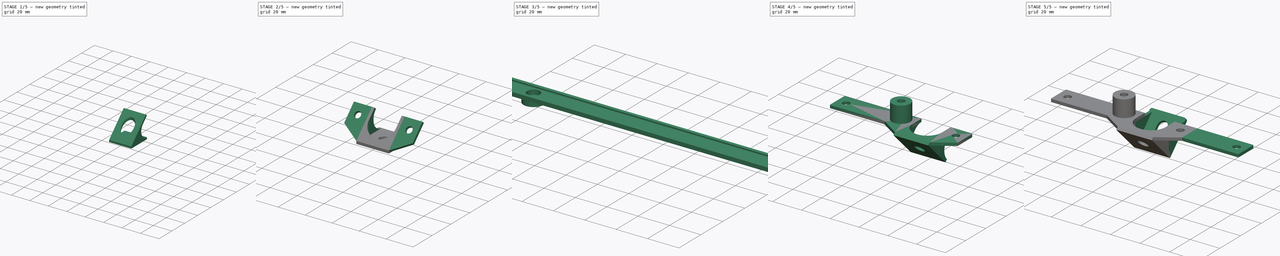
[diagram: build sequence overview — one tinted view per stage of 5, left to right]
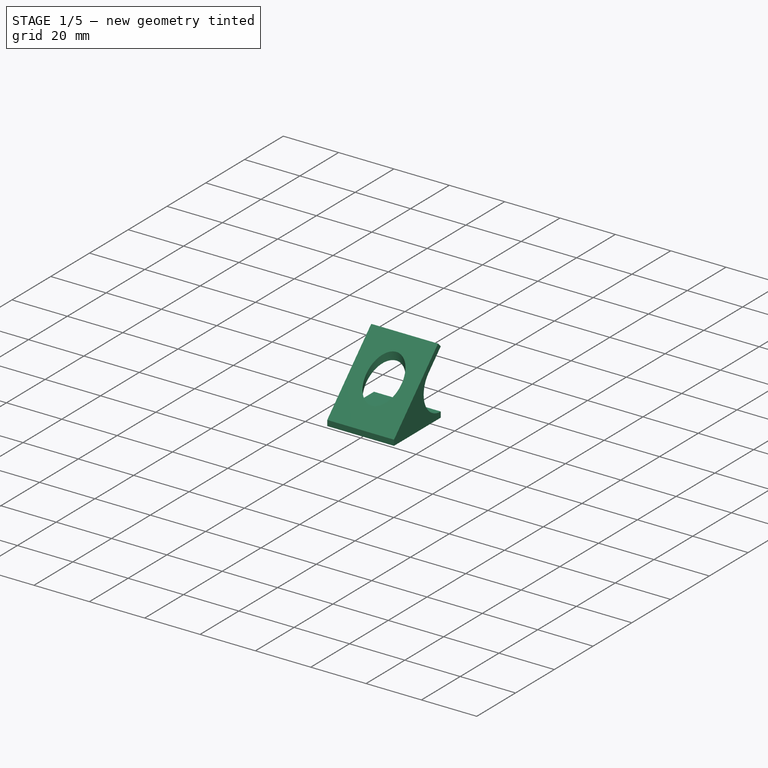
[diagram: stage 1 of 5 — iso view after this stage's code; geometry added in this stage tinted green]
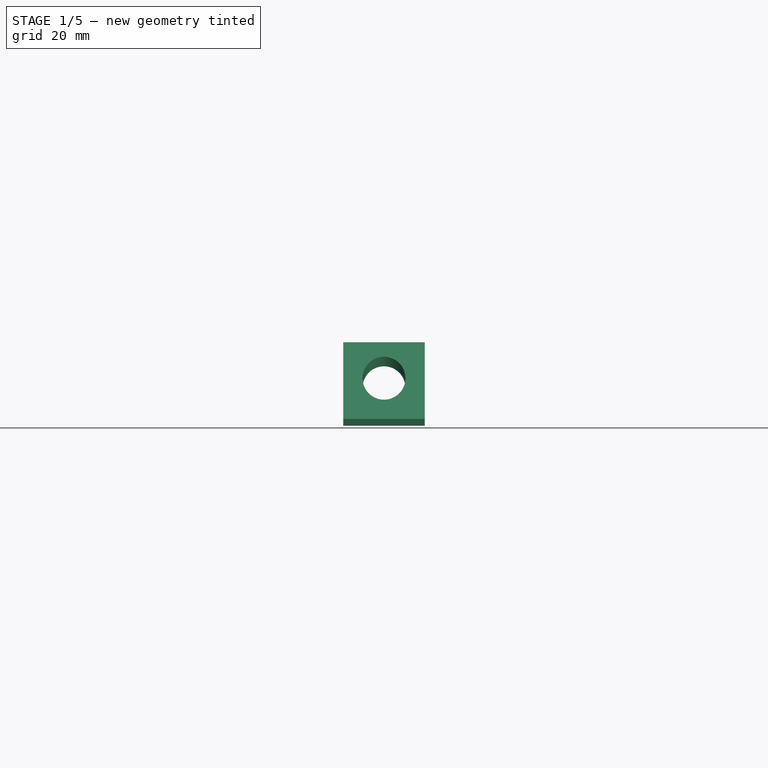
[diagram: stage 1 of 5 — front view after this stage's code; geometry added in this stage tinted green]
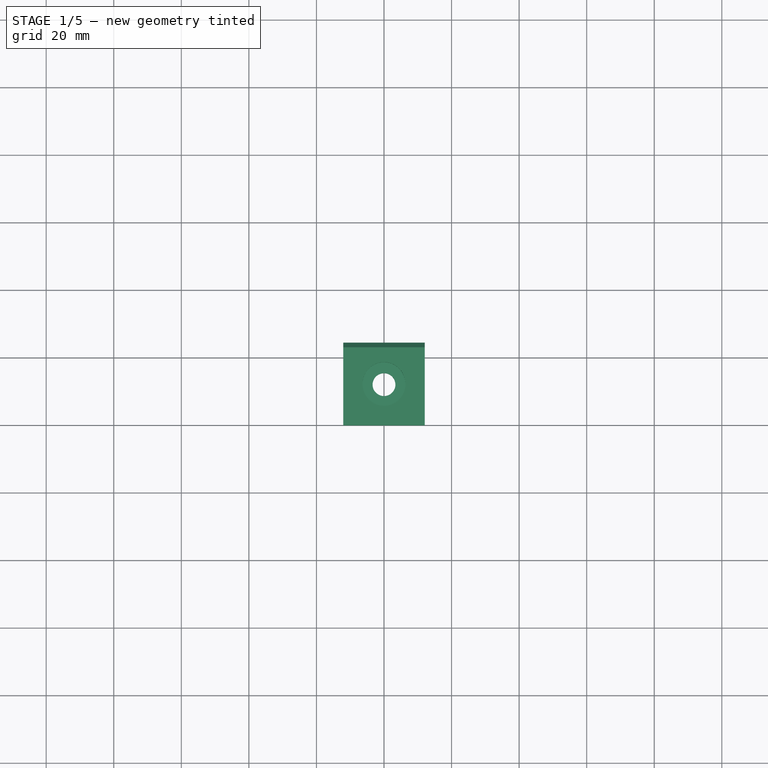
[diagram: stage 1 of 5 — top view after this stage's code; geometry added in this stage tinted green]
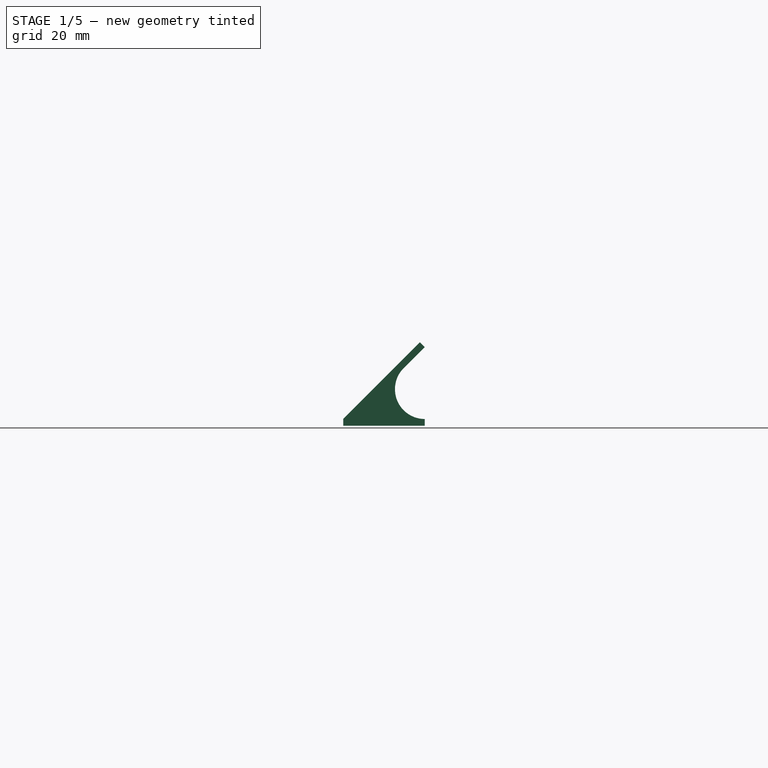
[diagram: stage 1 of 5 — right view after this stage's code; geometry added in this stage tinted green]
FCSTD DOCUMENT  (FreeCAD 0.22R38553 (Git))
Label: led_brackets
License: All rights reserved
LicenseURL: http://en.wikipedia.org/wiki/All_rights_reserved
objects: Sketcher::SketchObject×15, PartDesign::Pad×11, PartDesign::Mirrored×5, PartDesign::Body×4, PartDesign::Pocket×2, PartDesign::SubShapeBinder×2, PartDesign::Fillet×1, PartDesign::Hole×1, PartDesign::Plane×1, PartDesign::FeatureBase×1
note: 94 computed .brp shape members not serialized (recipe doc carries the construction recipe); baked Part::Feature solids carry a one-line shape summary decoded from their .brp

FEATURE [Sketcher::SketchObject] Sketch
  ArcFitTolerance = 1e-06
  AttachmentSupport = -> [XY_Plane]
  FullyConstrained = true
  MakeInternals = false
  MapMode = 5
  sketch-geometry (5):
    g0: LineSegment StartX=-12.065 StartY=0 StartZ=0 EndX=12.065 EndY=0 EndZ=0
    g1: LineSegment StartX=12.065 StartY=0 StartZ=0 EndX=12.065 EndY=24.13 EndZ=0
    g2: LineSegment StartX=12.065 StartY=24.13 StartZ=0 EndX=-12.065 EndY=24.13 EndZ=0
    g3: LineSegment StartX=-12.065 StartY=24.13 StartZ=0 EndX=-12.065 EndY=0 EndZ=0
    g4: Circle CenterX=0 CenterY=12.065 CenterZ=0 NormalX=0 NormalY=0 NormalZ=1 AngleXU=0 Radius=3.3782
  constraints (14):
    c: Coincident(g0,g1)
    c: Coincident(g1,g2)
    c: Coincident(g2,g3)
    c: Coincident(g3,g0)
    c: Horizontal(g0)
    c: Horizontal(g2)
    c: Vertical(g1)
    c: Vertical(g3)
    c: PointOnObject(g0,g-1)
    c: PointOnObject(g4,g-2)
    c: DistanceX(g2,g2) = 24.13
    c: Equal(g2,g3)
    c: Symmetric(g2,g0,g4)
    c: Diameter(g4) = 6.7564
FEATURE [PartDesign::Pad] Pad
  Direction = (0,0,1)
  Length = 2
  Length2 = 10
  Profile = -> Sketch
  ReferenceAxis = -> Sketch [N_Axis]
  Suppressed = false
  Type = 0
FEATURE [Sketcher::SketchObject] Sketch001
  ArcFitTolerance = 1e-06
  AttachmentSupport = -> [YZ_Plane]
  ExternalGeometry = -> [Pad]
  FullyConstrained = true
  MakeInternals = false
  MapMode = 5
  Placement = pos=(0,0,0) rot=(0.57735,0.57735,0.57735;2.0944rad)
  sketch-geometry (5):
    g0: LineSegment StartX=0 StartY=2 StartZ=0 EndX=22.7158 EndY=24.7158 EndZ=0
    g1: LineSegment StartX=22.7158 StartY=24.7158 StartZ=0 EndX=24.13 EndY=23.3016 EndZ=0
    g2: LineSegment StartX=24.13 StartY=23.3016 StartZ=0 EndX=4.53553 EndY=3.70711 EndZ=0
    g3: ArcOfCircle CenterX=5.24264 CenterY=3 CenterZ=0 NormalX=0 NormalY=0 NormalZ=1 AngleXU=0 Radius=1 StartAngle=2.35619 EndAngle=4.71239
    g4: LineSegment StartX=5.24264 StartY=2 StartZ=0 EndX=0 EndY=2 EndZ=0
  constraints (13):
    c: Coincident(g0,g1)
    c: Coincident(g1,g2)
    c: Distance(g1,g1) = 2
    c: Angle(g0,g1) = 1.5708
    c: Parallel(g0,g2)
    c: Angle(g-1,g2) = 0.785398
    c: Vertical(g-3,g1)
    c: Coincident(g0,g-4)
    c: Tangent(g3,g2) = -1.5708
    c: Coincident(g4,g3)
    c: Coincident(g4,g0)
    c: Tangent(g3,g-4) = 1.5708
    c: Radius(g3) = 1
FEATURE [PartDesign::Pad] Pad001
  BaseFeature = -> Pad
  Direction = (1,0,0)
  Length = 24.13
  Length2 = 10
  Midplane = true
  Profile = -> Sketch001
  ReferenceAxis = -> Sketch001 [N_Axis]
  Suppressed = false
  Type = 0
FEATURE [Sketcher::SketchObject] Sketch002
  ArcFitTolerance = 1e-06
  AttachmentSupport = -> [Pad001]
  ExternalGeometry = -> [Pad001]
  FullyConstrained = true
  MakeInternals = false
  MapMode = 5
  Placement = pos=(0,0,2) rot=(0,0,1;0rad)
  sketch-geometry (1):
    g0: Circle CenterX=0 CenterY=12.065 CenterZ=0 NormalX=0 NormalY=0 NormalZ=1 AngleXU=0 Radius=6.35
  constraints (2):
    c: Coincident(g0,g-3)
    c: Diameter(g0) = 12.7
FEATURE [PartDesign::Pocket] Pocket
  BaseFeature = -> Pad001
  Direction = (0,0,-1)
  Length = 17
  Length2 = 5
  Profile = -> Sketch002
  ReferenceAxis = -> Sketch002 [N_Axis]
  Reversed = true
  Suppressed = false
  Type = 1
FEATURE [Sketcher::SketchObject] Sketch003
  ArcFitTolerance = 1e-06
  AttachmentSupport = -> [Pocket]
  ExternalGeometry = -> [Pocket]
  FullyConstrained = true
  MakeInternals = false
  MapMode = 5
  Placement = pos=(12.065,0,0) rot=(0.57735,0.57735,0.57735;2.0944rad)
  sketch-geometry (3):
    g0: ArcOfCircle CenterX=24.13 CenterY=10.8234 CenterZ=0 NormalX=0 NormalY=0 NormalZ=1 AngleXU=0 Radius=8.8234 StartAngle=2.35619 EndAngle=4.71239
    g1: LineSegment StartX=17.8909 StartY=17.0625 StartZ=0 EndX=2.82843 EndY=2 EndZ=0
    g2: LineSegment StartX=2.82843 StartY=2 StartZ=0 EndX=24.13 EndY=2 EndZ=0
  constraints (7):
    c: Tangent(g0,g-5) = -1.5708
    c: Tangent(g0,g-6) = -1.5708
    c: Coincident(g1,g0)
    c: Coincident(g2,g1)
    c: Tangent(g2,g0) = -1.5708
    c: Coincident(g0,g-6)
    c: PointOnObject(g-5,g1)
FEATURE [PartDesign::Pad] Pad002
  BaseFeature = -> Pocket
  Direction = (1,0,0)
  Length = 2
  Length2 = 10
  Profile = -> Sketch003
  ReferenceAxis = -> Sketch003 [N_Axis]
  Reversed = true
  Suppressed = false
  Type = 0
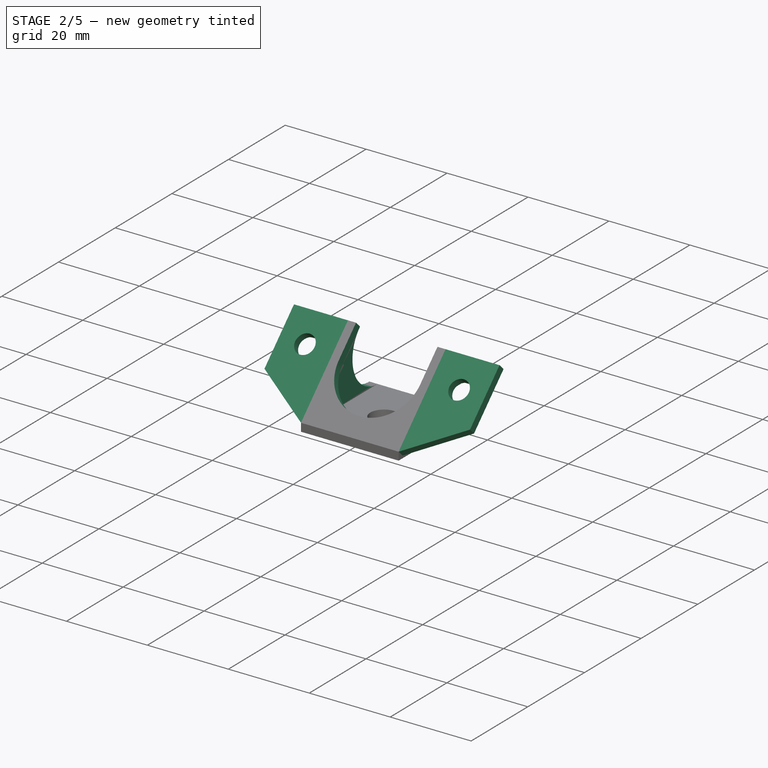
[diagram: stage 2 of 5 — iso view after this stage's code; geometry added in this stage tinted green]
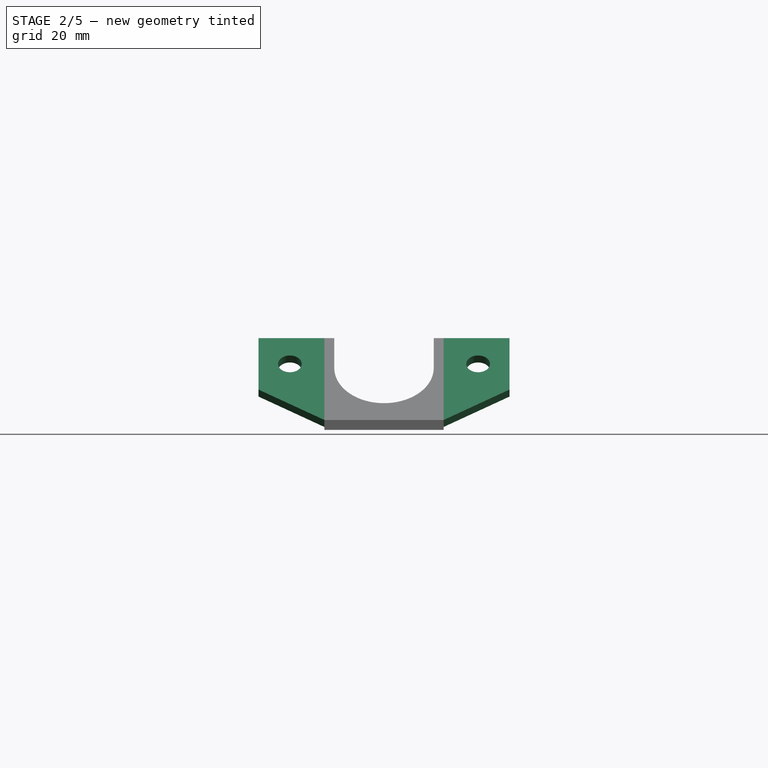
[diagram: stage 2 of 5 — front view after this stage's code; geometry added in this stage tinted green]
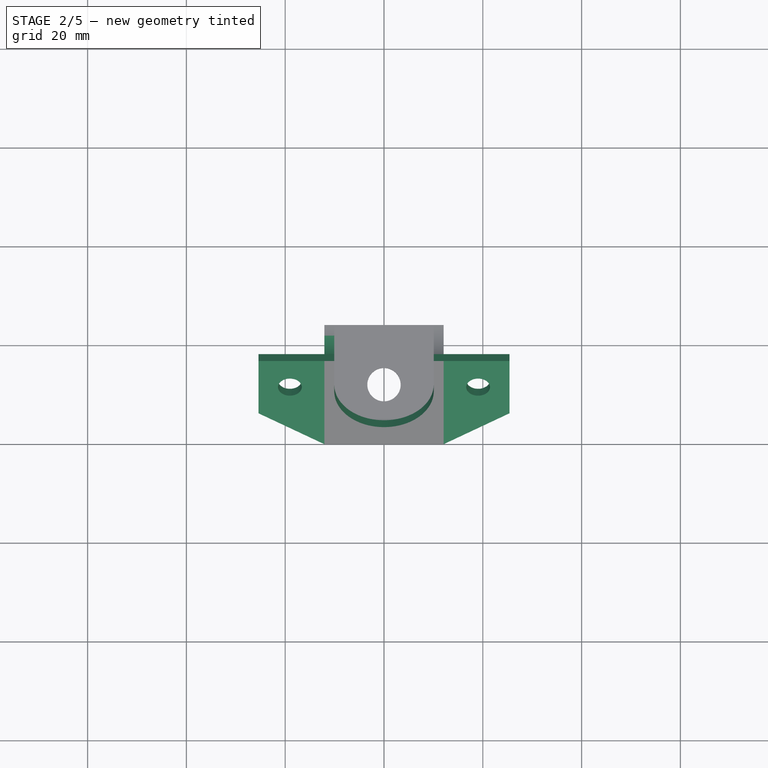
[diagram: stage 2 of 5 — top view after this stage's code; geometry added in this stage tinted green]
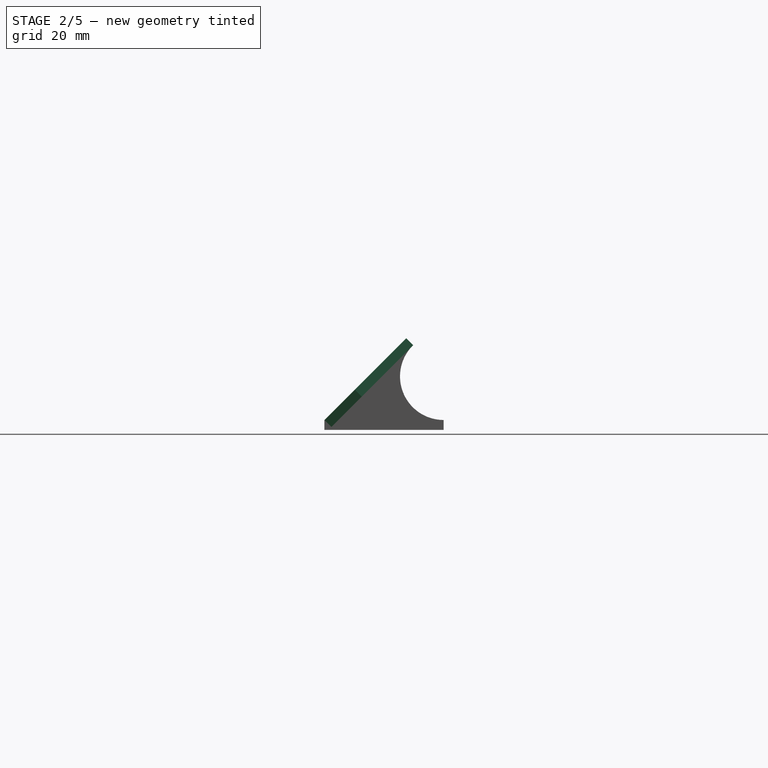
[diagram: stage 2 of 5 — right view after this stage's code; geometry added in this stage tinted green]
FEATURE [PartDesign::Mirrored] Mirrored
  BaseFeature = -> Pad002
  MirrorPlane = -> YZ_Plane
  Originals = -> [Pad002]
  Suppressed = false
  TransformMode = 0
FEATURE [Sketcher::SketchObject] Sketch004
  ArcFitTolerance = 1e-06
  AttachmentSupport = -> [Mirrored]
  ExternalGeometry = -> [Mirrored]
  FullyConstrained = true
  MakeInternals = false
  MapMode = 5
  Placement = pos=(0,-1,1) rot=(1,0,0;0.785398rad)
  sketch-geometry (6):
    g0: LineSegment StartX=-12.065 StartY=33.5392 StartZ=0 EndX=-25.4 EndY=24.8427 EndZ=0
    g1: LineSegment StartX=-25.4 StartY=24.8427 StartZ=0 EndX=-25.4 EndY=10.1107 EndZ=0
    g2: LineSegment StartX=-25.4 StartY=10.1107 StartZ=0 EndX=-12.065 EndY=1.41421 EndZ=0
    g3: LineSegment StartX=-12.065 StartY=1.41421 StartZ=0 EndX=-12.065 EndY=33.5392 EndZ=0
    g4: Circle CenterX=-19.05 CenterY=17.4767 CenterZ=0 NormalX=0 NormalY=0 NormalZ=1 AngleXU=0 Radius=2.4
    g5: LineSegment [constr] StartX=-19.05 StartY=17.4767 StartZ=0 EndX=-25.4 EndY=17.4767 EndZ=0
  constraints (15):
    c: Coincident(g0,g1)
    c: Coincident(g1,g2)
    c: Coincident(g2,g3)
    c: Coincident(g3,g0)
    c: Vertical(g1)
    c: Coincident(g0,g-3)
    c: Coincident(g2,g-4)
    c: Diameter(g4) = 4.8
    c: Equal(g0,g2)
    c: DistanceY(g1,g1) = 14.732
    c: DistanceX(g4,g-5) = 19.05
    c: Distance(g4,g1) = 6.35
    c: Coincident(g5,g4)
    c: Symmetric(g1,g1,g5)
    c: Horizontal(g5)
FEATURE [PartDesign::Pad] Pad003
  BaseFeature = -> Mirrored
  Direction = (0,-0.707107,0.707107)
  Length = 2
  Length2 = 10
  Profile = -> Sketch004
  ReferenceAxis = -> Sketch004 [N_Axis]
  Reversed = true
  Suppressed = false
  Type = 0
FEATURE [PartDesign::Mirrored] Mirrored001
  BaseFeature = -> Pad003
  MirrorPlane = -> Sketch004 [V_Axis]
  Originals = -> [Pad003]
  Suppressed = false
  TransformMode = 0
FEATURE [Sketcher::SketchObject] Sketch006
  ArcFitTolerance = 1e-06
  AttachmentSupport = -> [Mirrored001]
  ExternalGeometry = -> [Mirrored001]
  FullyConstrained = true
  MakeInternals = false
  MapMode = 5
  Placement = pos=(0,-1,1) rot=(1,0,0;0.785398rad)
  sketch-geometry (10):
    g0: LineSegment StartX=25.4 StartY=24.8427 StartZ=0 EndX=25.4 EndY=33.5392 EndZ=0
    g1: LineSegment StartX=25.4 StartY=33.5392 StartZ=0 EndX=-25.4 EndY=33.5392 EndZ=0
    g2: LineSegment StartX=-25.4 StartY=33.5392 StartZ=0 EndX=-25.4 EndY=24.8427 EndZ=0
    g3: LineSegment StartX=-25.4 StartY=24.8427 StartZ=0 EndX=-10.065 EndY=24.8427 EndZ=0
    g4: ArcOfCircle CenterX=4e-16 CenterY=16.2914 CenterZ=0 NormalX=0 NormalY=0 NormalZ=1 AngleXU=0 Radius=10.065 StartAngle=3.14159 EndAngle=6.28319
    g5: LineSegment StartX=10.065 StartY=16.2914 StartZ=0 EndX=10.065 EndY=24.8427 EndZ=0
    g6: LineSegment StartX=10.065 StartY=24.8427 StartZ=0 EndX=25.4 EndY=24.8427 EndZ=0
    g7: LineSegment StartX=-10.065 StartY=16.2914 StartZ=0 EndX=-10.065 EndY=24.8427 EndZ=0
    g8: GeomPoint X=0 Y=7.49644 Z=0
    g9: GeomPoint X=0 Y=6.22644 Z=0
  constraints (25):
    c: Coincident(g0,g1)
    c: Coincident(g1,g2)
    c: Horizontal(g1)
    c: Vertical(g0)
    c: Vertical(g2)
    c: PointOnObject(g-5,g1)
    c: Coincident(g2,g3)
    c: Horizontal(g3)
    c: PointOnObject(g4,g-6)
    c: PointOnObject(g4,g-7)
    c: Tangent(g4,g5) = -1.5708
    c: Coincident(g6,g0)
    c: Horizontal(g6)
    c: Coincident(g7,g3)
    c: Vertical(g7)
    c: Coincident(g5,g6)
    c: Vertical(g5)
    c: Coincident(g2,g-3)
    c: Coincident(g0,g-4)
    c: Tangent(g7,g4) = 1.5708
    c: PointOnObject(g8,g-8)
    c: PointOnObject(g8,g-2)
    c: PointOnObject(g9,g4)
    c: Distance(g8,g9) = 1.27
    c: Vertical(g9,g8)
FEATURE [PartDesign::Pocket] Pocket001
  BaseFeature = -> Mirrored001
  Direction = (0,0.707107,-0.707107)
  Length = 2.54
  Length2 = 5
  Profile = -> Sketch006
  ReferenceAxis = -> Sketch006 [N_Axis]
  Suppressed = false
  Type = 0
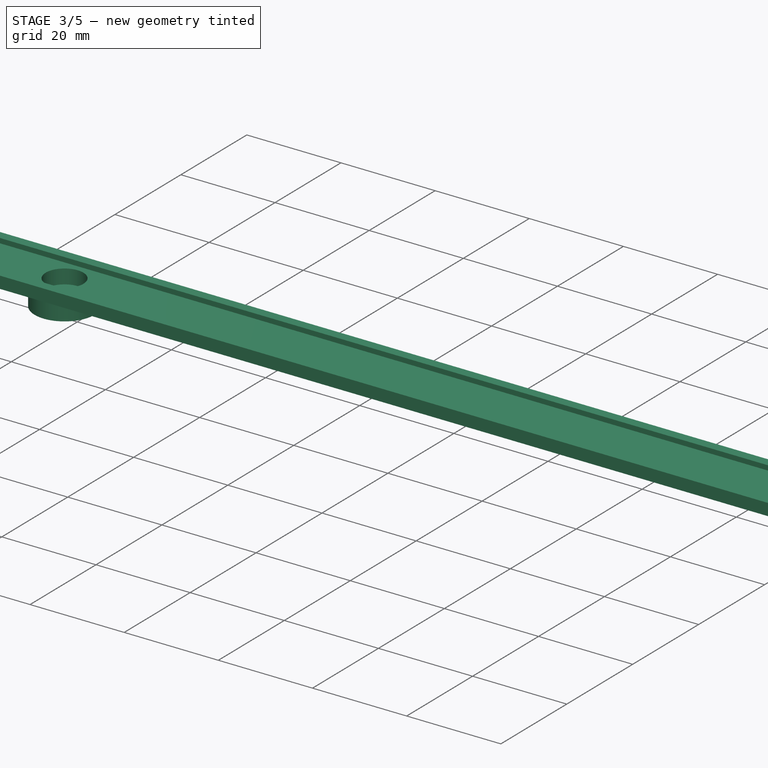
[diagram: stage 3 of 5 — iso view after this stage's code; geometry added in this stage tinted green]
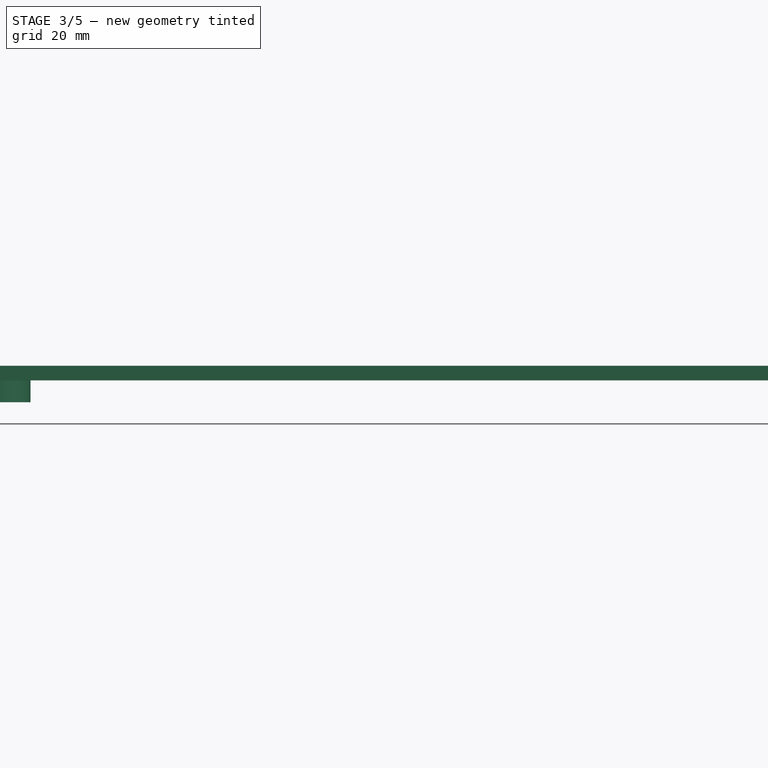
[diagram: stage 3 of 5 — front view after this stage's code; geometry added in this stage tinted green]
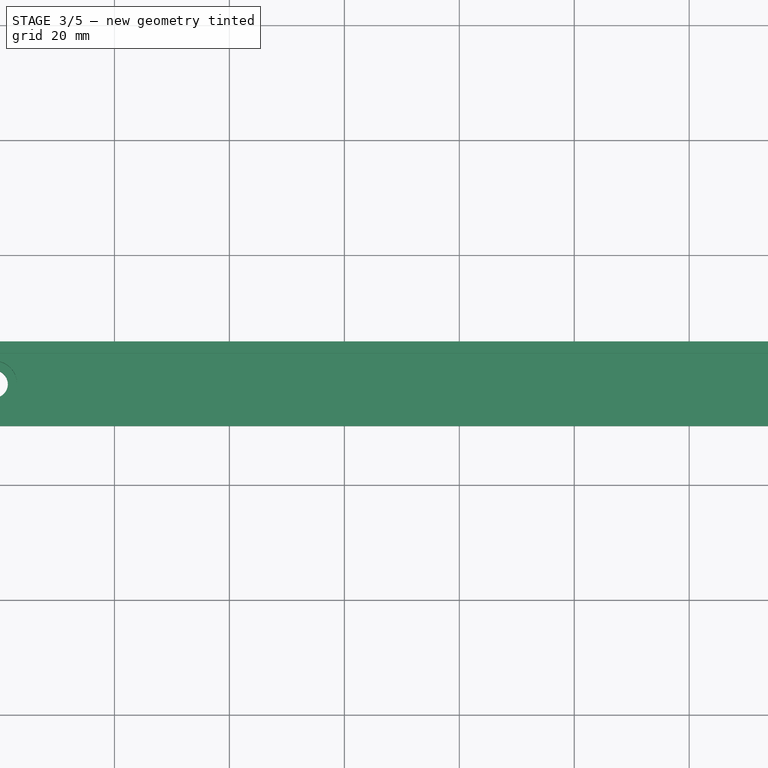
[diagram: stage 3 of 5 — top view after this stage's code; geometry added in this stage tinted green]
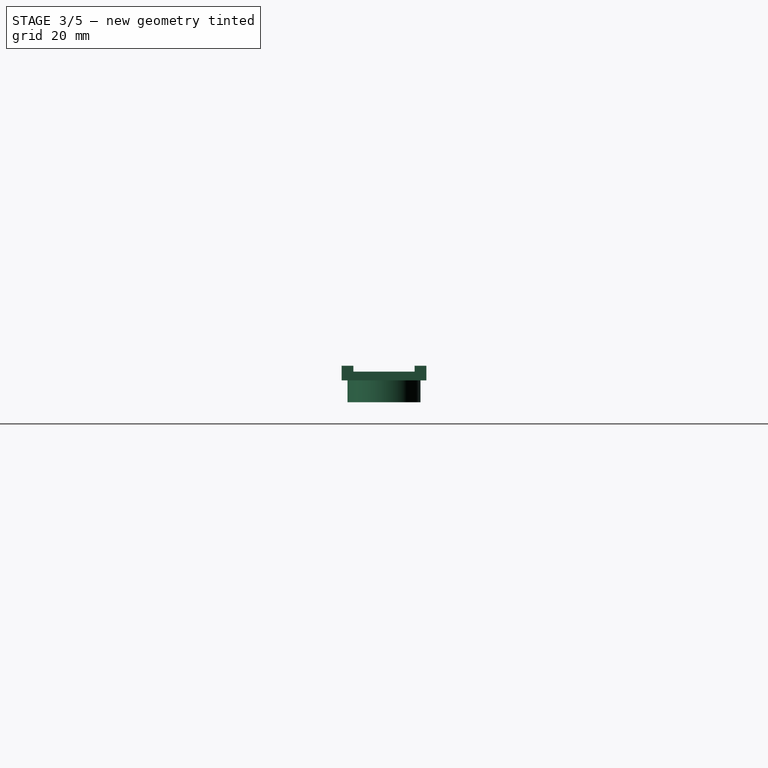
[diagram: stage 3 of 5 — right view after this stage's code; geometry added in this stage tinted green]
FEATURE [PartDesign::SubShapeBinder] Binder
  BindCopyOnChange = 0
  BindMode = 0
  ClaimChildren = false
  Context = -> Body001 [Binder.]
  Fuse = false
  MakeFace = true
  OffsetFill = false
  OffsetIntersection = false
  OffsetJoinType = 0
  OffsetOpenResult = false
  PartialLoad = false
  Relative = true
  Support = -> [Body]
  _Version = 2
FEATURE [Sketcher::SketchObject] Sketch005
  ArcFitTolerance = 1e-06
  AttachmentSupport = -> [XY_Plane001]
  ExternalGeometry = -> [Binder]
  FullyConstrained = true
  MakeInternals = false
  MapMode = 5
  sketch-geometry (14):
    g0: LineSegment StartX=-37.846 StartY=22.86 StartZ=0 EndX=-37.846 EndY=12.192 EndZ=0
    g1: LineSegment StartX=-37.846 StartY=12.192 StartZ=0 EndX=211.646 EndY=12.192 EndZ=0
    g2: LineSegment StartX=211.646 StartY=12.192 StartZ=0 EndX=211.646 EndY=22.86 EndZ=0
    g3: LineSegment StartX=211.646 StartY=22.86 StartZ=0 EndX=-37.846 EndY=22.86 EndZ=0
    g4: LineSegment StartX=-37.846 StartY=22.86 StartZ=0 EndX=211.646 EndY=22.86 EndZ=0
    g5: LineSegment StartX=211.646 StartY=22.86 StartZ=0 EndX=211.646 EndY=24.892 EndZ=0
    g6: LineSegment StartX=211.646 StartY=24.892 StartZ=0 EndX=-37.846 EndY=24.892 EndZ=0
    g7: LineSegment StartX=-37.846 StartY=24.892 StartZ=0 EndX=-37.846 EndY=22.86 EndZ=0
    g8: LineSegment StartX=-37.846 StartY=12.192 StartZ=0 EndX=-37.846 EndY=10.16 EndZ=0
    g9: LineSegment StartX=-37.846 StartY=10.16 StartZ=0 EndX=211.646 EndY=10.16 EndZ=0
    g10: LineSegment StartX=211.646 StartY=10.16 StartZ=0 EndX=211.646 EndY=12.192 EndZ=0
    g11: LineSegment StartX=211.646 StartY=12.192 StartZ=0 EndX=-37.846 EndY=12.192 EndZ=0
    g12: GeomPoint X=-37.846 Y=17.526 Z=0
    g13: GeomPoint X=-37.846 Y=17.526 Z=0
  constraints (35):
    c: Coincident(g0,g1)
    c: Coincident(g1,g2)
    c: Coincident(g2,g3)
    c: Coincident(g3,g0)
    c: Vertical(g0)
    c: Vertical(g2)
    c: Horizontal(g1)
    c: Horizontal(g3)
    c: DistanceX(g3,g3) = 249.492
    c: DistanceY(g0,g0) = 10.668
    c: Coincident(g4,g5)
    c: Coincident(g5,g6)
    c: Coincident(g6,g7)
    c: Coincident(g7,g4)
    c: Horizontal(g6)
    c: Vertical(g5)
    c: Vertical(g7)
    c: Coincident(g4,g0)
    c: Coincident(g4,g2)
    c: Coincident(g8,g9)
    c: Coincident(g9,g10)
    c: Coincident(g10,g11)
    c: Coincident(g11,g8)
    c: Vertical(g8)
    c: Vertical(g10)
    c: Horizontal(g9)
    c: Coincident(g8,g0)
    c: Coincident(g10,g1)
    c: Equal(g7,g8)
    c: DistanceY(g8,g6) = 14.732
    c: Distance(g7,g7) = 2.032
    c: Symmetric(g0,g0,g12)
    c: Coincident(g12,g13)
    c: DistanceX(g12,g-1) = 37.846
    c: DistanceY(g-1,g6) = 24.892
FEATURE [PartDesign::Pad] Pad004
  Direction = (0,0,1)
  Length = 1.524
  Length2 = 10
  Profile = -> Sketch005 [Edge8,Edge1,Edge5,Edge7]
  ReferenceAxis = -> Sketch005 [N_Axis]
  Suppressed = false
  Type = 0
FEATURE [PartDesign::Pad] Pad005
  BaseFeature = -> Pad004
  Direction = (0,0,1)
  Length = 2.54
  Length2 = 10
  Profile = -> Sketch005 [Edge11,Edge12,Edge5,Edge2,Edge3,Vertex6,Edge8,Edge10,Edge4]
  ReferenceAxis = -> Sketch005 [N_Axis]
  Suppressed = false
  Type = 0
FEATURE [PartDesign::Fillet] Fillet
  Base = -> Pocket001 [Edge58,Edge68]
  BaseFeature = -> Pocket001
  Radius = 0.508
  SupportTransform = false
  Suppressed = false
  UseAllEdges = false
FEATURE [PartDesign::Body] Body  label="bracket"
  AllowCompound = false
  Group = -> [Sketch,Pad,Sketch001,Pad001,Sketch002,Pocket,Sketch003,Pad002,Mirrored,Sketch004,Pad003,Mirrored001,Sketch006,Pocket001,Fillet]
  Origin = -> Origin
  Placement = pos=(0,0,0) rot=(1,0,0;5.49779rad)
  Tip = -> Fillet
FEATURE [Sketcher::SketchObject] Sketch007
  ArcFitTolerance = 1e-06
  AttachmentSupport = -> [Pad005]
  ExternalGeometry = -> [Binder,Pad005]
  FullyConstrained = true
  MakeInternals = false
  MapMode = 5
  Placement = pos=(0,0,0) rot=(1,0,0;3.14159rad)
  sketch-geometry (4):
    g0: LineSegment [constr] StartX=-19.05 StartY=-10.16 StartZ=0 EndX=-19.05 EndY=-24.892 EndZ=0
    g1: Circle CenterX=-19.05 CenterY=-17.526 CenterZ=0 NormalX=0 NormalY=0 NormalZ=1 AngleXU=0 Radius=6.35
    g2: LineSegment [constr] StartX=19.05 StartY=-10.16 StartZ=0 EndX=19.05 EndY=-24.892 EndZ=0
    g3: Circle CenterX=19.05 CenterY=-17.526 CenterZ=0 NormalX=0 NormalY=0 NormalZ=1 AngleXU=0 Radius=6.35
  constraints (12):
    c: PointOnObject(g0,g-5)
    c: PointOnObject(g0,g-6)
    c: Vertical(g0)
    c: Diameter(g1) = 12.7
    c: Symmetric(g0,g0,g1)
    c: DistanceX(g-7,g1) = 18.796
    c: PointOnObject(g2,g-5)
    c: PointOnObject(g2,g-6)
    c: Vertical(g2)
    c: Symmetric(g2,g2,g3)
    c: Equal(g1,g3)
    c: DistanceX(g1,g3) = 38.1
FEATURE [PartDesign::Pad] Pad006
  BaseFeature = -> Pad005
  Direction = (0,0,-1)
  Length = 3.81
  Length2 = 10
  Profile = -> Sketch007
  ReferenceAxis = -> Sketch007 [N_Axis]
  Suppressed = false
  Type = 0
FEATURE [Sketcher::SketchObject] Sketch008
  ArcFitTolerance = 1e-06
  AttachmentSupport = -> [Pad006]
  ExternalGeometry = -> [Pad006]
  FullyConstrained = true
  MakeInternals = false
  MapMode = 5
  Placement = pos=(0,0,1.524) rot=(0,0,1;0rad)
  sketch-geometry (2):
    g0: Circle CenterX=-19.05 CenterY=17.526 CenterZ=0 NormalX=0 NormalY=0 NormalZ=1 AngleXU=0 Radius=6.35
    g1: Circle CenterX=19.05 CenterY=17.526 CenterZ=0 NormalX=0 NormalY=0 NormalZ=1 AngleXU=0 Radius=6.35
  constraints (4):
    c: Equal(g0,g1)
    c: Coincident(g0,g-3)
    c: Coincident(g1,g-4)
    c: Equal(g0,g-3)
FEATURE [PartDesign::Hole] Hole
  BaseFeature = -> Pad006
  CustomThreadClearance = 0
  Depth = 373.392
  DepthType = 1
  Diameter = 4.8
  DrillForDepth = false
  DrillPoint = 1
  DrillPointAngle = 118
  HoleCutCountersinkAngle = 90
  HoleCutCustomValues = false
  HoleCutDepth = 3.048
  HoleCutDiameter = 8
  HoleCutType = 1
  ModelThread = false
  Profile = -> Sketch008
  Suppressed = false
  Tapered = false
  TaperedAngle = 90
  ThreadClass = 0
  ThreadDepth = 373.392
  ThreadDepthType = 0
  ThreadDirection = 0
  ThreadFit = 2
  ThreadSize = 11
  ThreadType = 1
  Threaded = false
  UseCustomThreadClearance = false
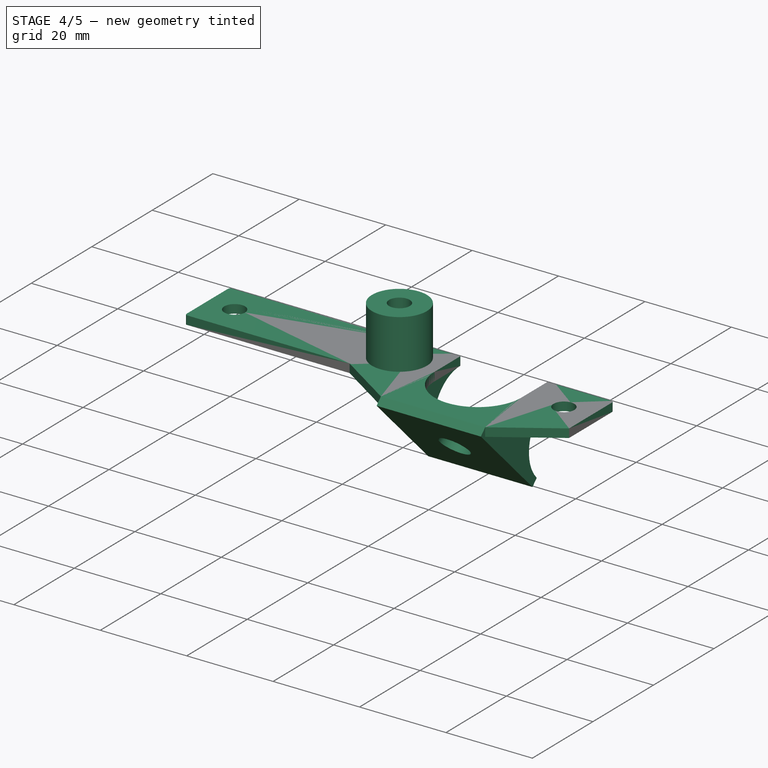
[diagram: stage 4 of 5 — iso view after this stage's code; geometry added in this stage tinted green]
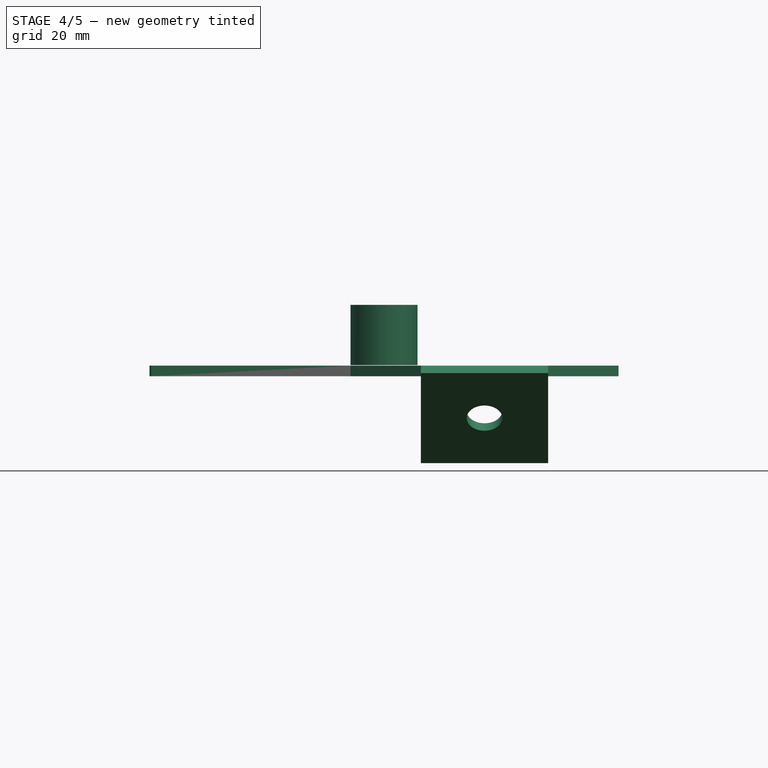
[diagram: stage 4 of 5 — front view after this stage's code; geometry added in this stage tinted green]
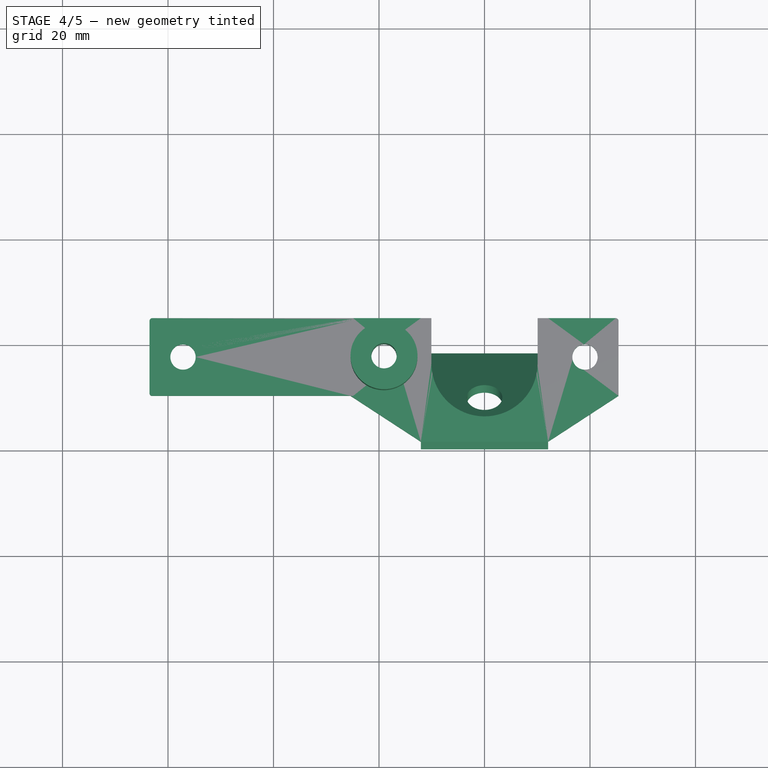
[diagram: stage 4 of 5 — top view after this stage's code; geometry added in this stage tinted green]
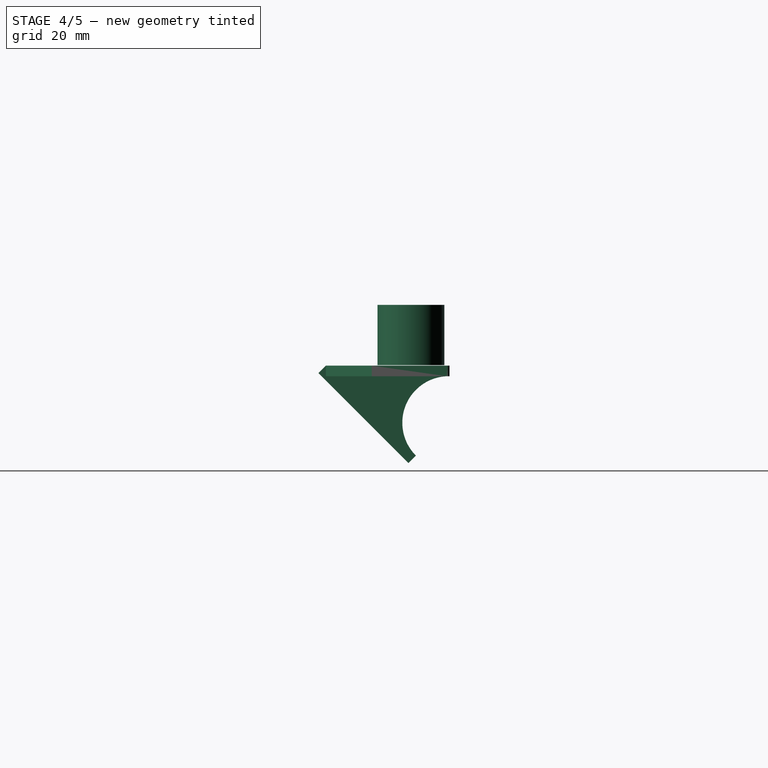
[diagram: stage 4 of 5 — right view after this stage's code; geometry added in this stage tinted green]
FEATURE [Sketcher::SketchObject] Sketch009
  ArcFitTolerance = 1e-06
  AttachmentSupport = -> [Hole]
  ExternalGeometry = -> [Hole]
  FullyConstrained = true
  MakeInternals = false
  MapMode = 5
  Placement = pos=(0,0,1.524) rot=(0,0,1;0rad)
  sketch-geometry (1):
    g0: LineSegment StartX=86.9 StartY=24.892 StartZ=0 EndX=86.9 EndY=10.16 EndZ=0
  constraints (2):
    c: Symmetric(g-3,g-3,g0)
    c: Symmetric(g-4,g-4,g0)
FEATURE [PartDesign::Plane] DatumPlane
  AttachmentSupport = -> [YZ_Plane001,Sketch009]
  Length = 60
  MapMode = 53
  Placement = pos=(86.9,-9.6e-15,9.6e-15) rot=(0.57735,0.57735,0.57735;2.0944rad)
  ResizeMode = 0
  Width = 60
FEATURE [PartDesign::Mirrored] Mirrored002
  BaseFeature = -> Hole
  MirrorPlane = -> DatumPlane
  Originals = -> [Pad006,Hole]
  Suppressed = false
  TransformMode = 0
FEATURE [PartDesign::Body] Body001  label="rail"
  AllowCompound = false
  Group = -> [Binder,Sketch005,Pad004,Pad005,Sketch007,Pad006,Sketch008,Hole,Sketch009,DatumPlane,Mirrored002]
  Origin = -> Origin001
  Placement = pos=(0,0,16.746) rot=(0,0,1;0rad)
  Tip = -> Mirrored002
FEATURE [PartDesign::FeatureBase] Clone
  BaseFeature = -> Body
  Placement = pos=(0,0,0) rot=(1,0,0;5.49779rad)
  Suppressed = false
FEATURE [Sketcher::SketchObject] Sketch010
  ArcFitTolerance = 1e-06
  AttachmentSupport = -> [Clone]
  ExternalGeometry = -> [Clone]
  FullyConstrained = true
  MakeInternals = false
  MapMode = 5
  Placement = pos=(0,6e-16,1.41421) rot=(0,0,1;0rad)
  sketch-geometry (11):
    g0: LineSegment StartX=-24.892 StartY=24.8427 StartZ=0 EndX=-62.992 EndY=24.8427 EndZ=0
    g1: LineSegment StartX=-63.5 StartY=24.3347 StartZ=0 EndX=-63.5 EndY=10.6187 EndZ=0
    g2: LineSegment StartX=-62.992 StartY=10.1107 StartZ=0 EndX=-24.892 EndY=10.1107 EndZ=0
    g3: LineSegment StartX=-24.892 StartY=10.1107 StartZ=0 EndX=-24.892 EndY=24.8427 EndZ=0
    g4: ArcOfCircle CenterX=-62.992 CenterY=24.3347 CenterZ=0 NormalX=0 NormalY=0 NormalZ=1 AngleXU=0 Radius=0.508 StartAngle=1.5708 EndAngle=3.14159
    g5: GeomPoint [constr] X=-63.5 Y=24.8427 Z=0
    g6: ArcOfCircle CenterX=-62.992 CenterY=10.6187 CenterZ=0 NormalX=0 NormalY=0 NormalZ=1 AngleXU=0 Radius=0.508 StartAngle=3.14159 EndAngle=4.71239
    g7: GeomPoint [constr] X=-63.5 Y=10.1107 Z=0
    g8: Circle CenterX=-57.15 CenterY=17.4767 CenterZ=0 NormalX=0 NormalY=0 NormalZ=1 AngleXU=0 Radius=2.4
    g9: LineSegment [constr] StartX=-19.05 StartY=17.4767 StartZ=0 EndX=-25.4 EndY=17.4767 EndZ=0
    g10: LineSegment [constr] StartX=-57.15 StartY=17.4767 StartZ=0 EndX=-63.5 EndY=17.4767 EndZ=0
  constraints (27):
    c: Coincident(g2,g3)
    c: Coincident(g3,g0)
    c: Horizontal(g0)
    c: Horizontal(g2)
    c: Vertical(g1)
    c: Vertical(g3)
    c: Coincident(g0,g-4)
    c: Horizontal(g7,g-3)
    c: PointOnObject(g5,g0)
    c: PointOnObject(g5,g1)
    c: Tangent(g0,g4) = -1.5708
    c: Tangent(g1,g4) = -1.5708
    c: PointOnObject(g7,g2)
    c: PointOnObject(g7,g1)
    c: Tangent(g2,g6) = -1.5708
    c: Tangent(g1,g6) = -1.5708
    c: Equal(g4,g6)
    c: Equal(g-5,g4)
    c: Equal(g-6,g8)
    c: Horizontal(g8,g-6)
    c: DistanceX(g8,g-6) = 38.1
    c: Coincident(g9,g-6)
    c: Horizontal(g9)
    c: PointOnObject(g9,g-3)
    c: Coincident(g10,g8)
    c: Symmetric(g1,g1,g10)
    c: Equal(g9,g10)
FEATURE [PartDesign::Pad] Pad007
  BaseFeature = -> Clone
  Direction = (0,0,1)
  Length = 2
  Length2 = 10
  Placement = pos=(0,0,0) rot=(1,0,0;5.49779rad)
  Profile = -> Sketch010
  ReferenceAxis = -> Sketch010 [N_Axis]
  Reversed = true
  Suppressed = false
  Type = 0
FEATURE [PartDesign::Body] Body002  label="bracket_double"
  AllowCompound = false
  Group = -> [Clone,Sketch010,Pad007,Mirrored003,Sketch011,Pad008,Sketch012,Pad009,Mirrored004]
  Origin = -> Origin002
  Placement = pos=(211.887,0,0) rot=(0,0,1;0rad)
  Tip = -> Mirrored004
FEATURE [PartDesign::SubShapeBinder] Binder001
  BindCopyOnChange = 0
  BindMode = 0
  ClaimChildren = false
  Context = -> Body003 [Binder001.]
  Fuse = false
  MakeFace = true
  OffsetFill = false
  OffsetIntersection = false
  OffsetJoinType = 0
  OffsetOpenResult = false
  PartialLoad = false
  Relative = true
  Support = -> [Body001]
  _Version = 2
FEATURE [Sketcher::SketchObject] Sketch013
  ArcFitTolerance = 1e-06
  AttachmentSupport = -> [Binder001]
  ExternalGeometry = -> [Binder001]
  FullyConstrained = false
  MakeInternals = false
  MapMode = 5
  Placement = pos=(0,0,12.936) rot=(1,0,0;3.14159rad)
  sketch-geometry (2):
    g0: Circle CenterX=-19.05 CenterY=-17.526 CenterZ=0 NormalX=0 NormalY=0 NormalZ=1 AngleXU=0 Radius=6.35
    g1: Circle CenterX=-19.05 CenterY=-17.526 CenterZ=0 NormalX=0 NormalY=0 NormalZ=1 AngleXU=0 Radius=2.4
  constraints (2):
    c: Coincident(g0,g-4)
    c: Coincident(g1,g0)
FEATURE [PartDesign::Pad] Pad010
  Direction = (0,0,-1)
  Length = 11.43
  Length2 = 10
  Profile = -> Sketch013
  ReferenceAxis = -> Sketch013 [N_Axis]
  Suppressed = false
  Type = 0
FEATURE [Sketcher::SketchObject] Sketch014
  ArcFitTolerance = 1e-06
  AttachmentSupport = -> [YZ_Plane002]
  FullyConstrained = true
  MakeInternals = false
  MapMode = 5
  Placement = pos=(0,0,0) rot=(0.57735,0.57735,0.57735;2.0944rad)
FEATURE [PartDesign::Body] Body003  label="spacer"
  AllowCompound = false
  Group = -> [Binder001,Sketch013,Pad010,Sketch014]
  Origin = -> Origin003
  Tip = -> Pad010
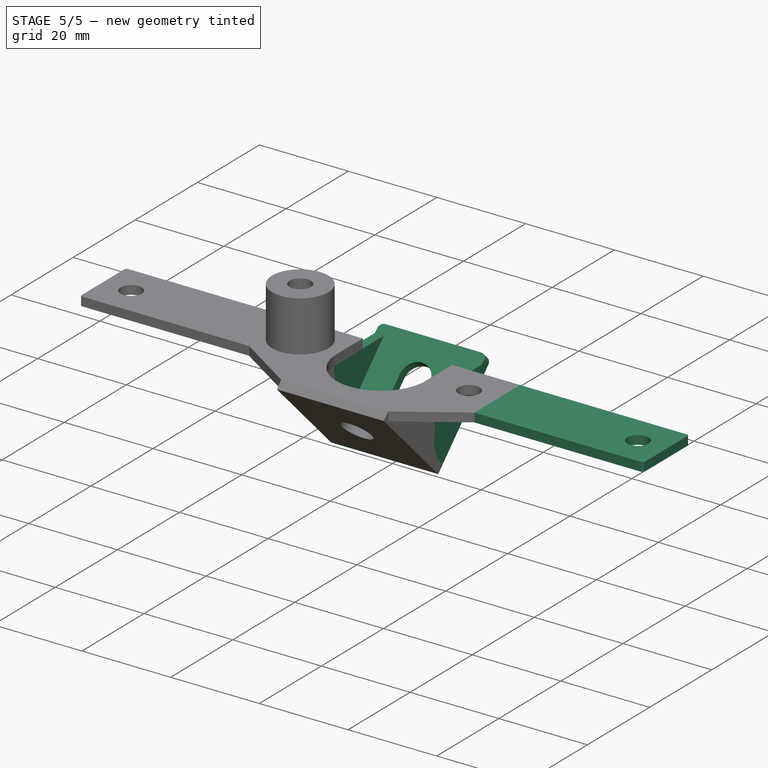
[diagram: stage 5 of 5 — iso view after this stage's code; geometry added in this stage tinted green]
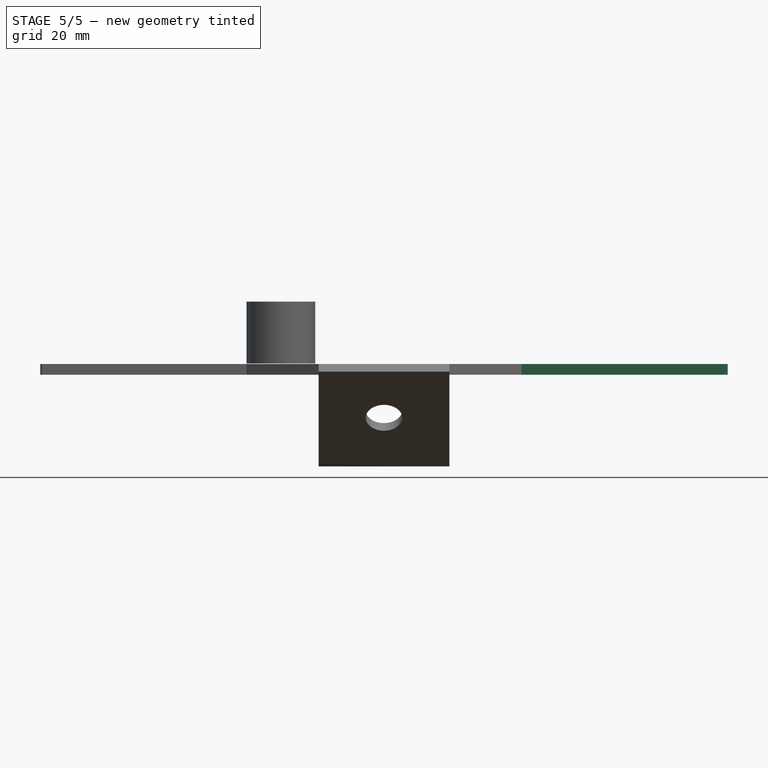
[diagram: stage 5 of 5 — front view after this stage's code; geometry added in this stage tinted green]
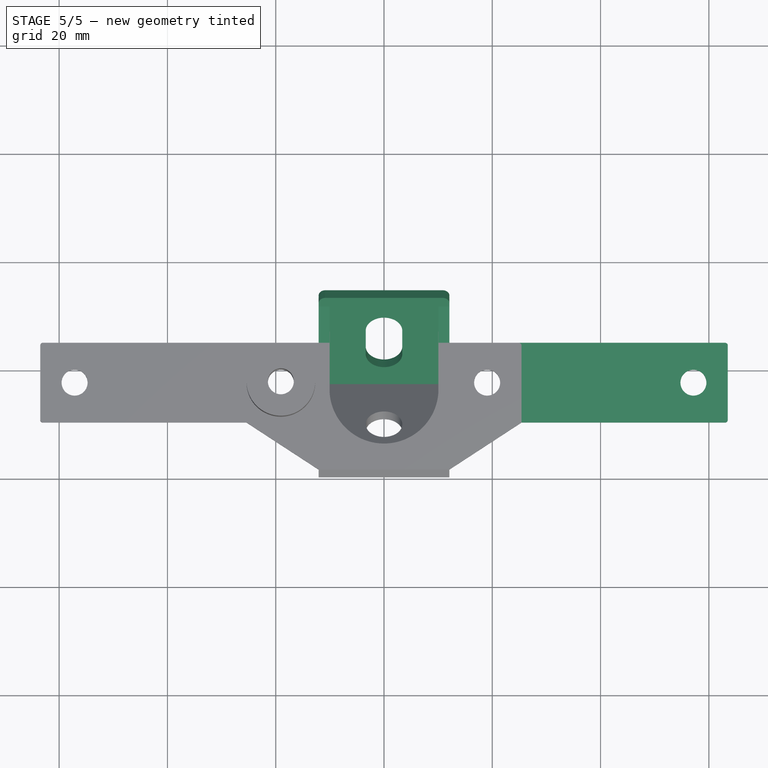
[diagram: stage 5 of 5 — top view after this stage's code; geometry added in this stage tinted green]
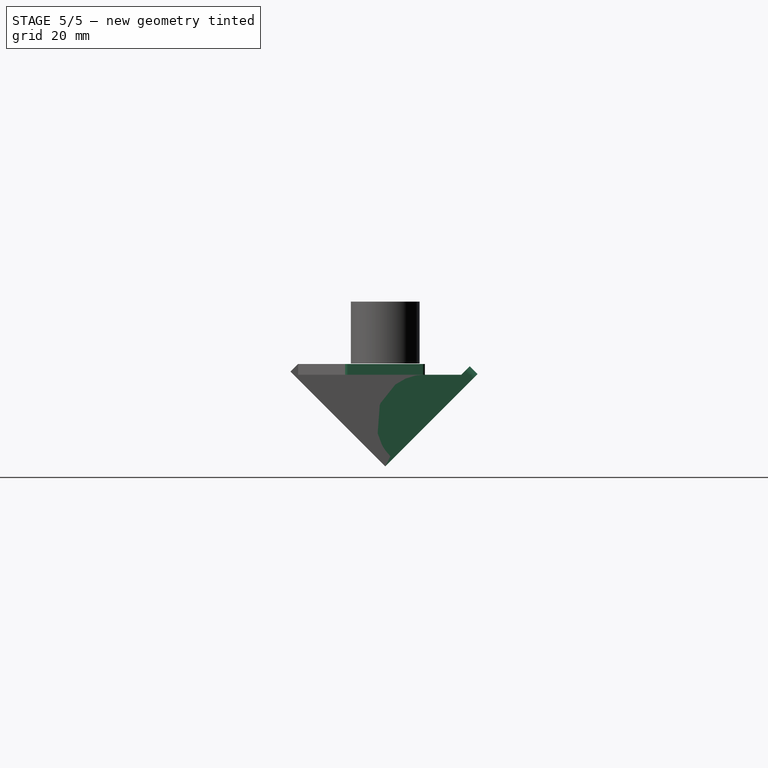
[diagram: stage 5 of 5 — right view after this stage's code; geometry added in this stage tinted green]
FEATURE [PartDesign::Mirrored] Mirrored003
  BaseFeature = -> Pad007
  MirrorPlane = -> Sketch010 [V_Axis]
  Originals = -> [Pad007]
  Placement = pos=(0,0,0) rot=(1,0,0;5.49779rad)
  Suppressed = false
  TransformMode = 0
FEATURE [Sketcher::SketchObject] Sketch011
  ArcFitTolerance = 1e-06
  AttachmentOffset = pos=(0,0,0.635) rot=(0,0,1;0rad)
  AttachmentSupport = -> [Mirrored003]
  ExternalGeometry = -> [Mirrored003]
  FullyConstrained = true
  MakeInternals = false
  MapMode = 5
  Placement = pos=(0,17.5115,-17.5115) rot=(0,0.92388,0.382683;3.14159rad)
  sketch-geometry (14):
    g0: LineSegment StartX=12.065 StartY=3.6e-15 StartZ=0 EndX=12.065 EndY=22.86 EndZ=0
    g1: LineSegment StartX=10.795 StartY=24.13 StartZ=0 EndX=-10.795 EndY=24.13 EndZ=0
    g2: LineSegment StartX=-12.065 StartY=22.86 StartZ=0 EndX=-12.065 EndY=3.6e-15 EndZ=0
    g3: ArcOfCircle CenterX=0 CenterY=15.6718 CenterZ=0 NormalX=0 NormalY=0 NormalZ=1 AngleXU=0 Radius=3.3782 StartAngle=0 EndAngle=3.14159
    g4: ArcOfCircle CenterX=-3e-16 CenterY=9.7282 CenterZ=0 NormalX=0 NormalY=0 NormalZ=1 AngleXU=0 Radius=3.3782 StartAngle=3.14159 EndAngle=6.28319
    g5: LineSegment StartX=3.3782 StartY=15.6718 StartZ=0 EndX=3.3782 EndY=9.7282 EndZ=0
    g6: LineSegment StartX=-3.3782 StartY=15.6718 StartZ=0 EndX=-3.3782 EndY=9.7282 EndZ=0
    g7: GeomPoint [constr] X=0 Y=19.05 Z=0
    g8: GeomPoint [constr] X=0 Y=6.35 Z=0
    g9: ArcOfCircle CenterX=10.795 CenterY=22.86 CenterZ=0 NormalX=0 NormalY=0 NormalZ=1 AngleXU=0 Radius=1.27 StartAngle=0 EndAngle=1.5708
    g10: GeomPoint [constr] X=12.065 Y=24.13 Z=0
    g11: ArcOfCircle CenterX=-10.795 CenterY=22.86 CenterZ=0 NormalX=0 NormalY=0 NormalZ=1 AngleXU=0 Radius=1.27 StartAngle=1.5708 EndAngle=3.14159
    g12: GeomPoint [constr] X=-12.065 Y=24.13 Z=0
    g13: LineSegment StartX=12.065 StartY=3.6e-15 StartZ=0 EndX=-12.065 EndY=3.6e-15 EndZ=0
  constraints (31):
    c: Vertical(g0)
    c: Vertical(g2)
    c: Horizontal(g1)
    c: Tangent(g3,g5) = 1.5708
    c: Tangent(g3,g6) = -1.5708
    c: Tangent(g4,g5) = 1.5708
    c: Tangent(g4,g6) = -1.5708
    c: Equal(g3,g4)
    c: Symmetric(g3,g3,g-2)
    c: Distance(g4,g4) = 6.7564
    c: PointOnObject(g7,g3)
    c: PointOnObject(g8,g4)
    c: PointOnObject(g7,g-2)
    c: PointOnObject(g8,g-2)
    c: DistanceY(g8,g7) = 12.7
    c: PointOnObject(g10,g0)
    c: PointOnObject(g10,g1)
    c: Tangent(g0,g9) = -1.5708
    c: Tangent(g1,g9) = -1.5708
    c: PointOnObject(g12,g2)
    c: PointOnObject(g12,g1)
    c: Tangent(g2,g11) = -1.5708
    c: Tangent(g1,g11) = -1.5708
    c: Equal(g9,g11)
    c: Radius(g9) = 1.27
    c: Coincident(g0,g-3)
    c: Coincident(g2,g-3)
    c: Coincident(g13,g0)
    c: Coincident(g13,g2)
    c: DistanceY(g0,g10) = 24.13
    c: DistanceY(g-1,g8) = 6.35
FEATURE [PartDesign::Pad] Pad008
  BaseFeature = -> Mirrored003
  Direction = (0,0.707107,-0.707107)
  Length = 2.032
  Length2 = 10
  Placement = pos=(0,0,0) rot=(1,0,0;5.49779rad)
  Profile = -> Sketch011
  ReferenceAxis = -> Sketch011 [N_Axis]
  Reversed = true
  Suppressed = false
  Type = 0
FEATURE [Sketcher::SketchObject] Sketch012
  ArcFitTolerance = 1e-06
  AttachmentSupport = -> [Pad008]
  ExternalGeometry = -> [Pad008]
  FullyConstrained = true
  MakeInternals = false
  MapMode = 5
  Placement = pos=(-12.065,0,-3.8e-15) rot=(0.357407,-0.862856,-0.357407;1.71777rad)
  sketch-geometry (3):
    g0: LineSegment StartX=-24.13 StartY=2 StartZ=0 EndX=-2.82843 EndY=2 EndZ=0
    g1: LineSegment StartX=-2.82843 StartY=2 StartZ=0 EndX=-24.13 EndY=23.3016 EndZ=0
    g2: LineSegment StartX=-24.13 StartY=23.3016 StartZ=0 EndX=-24.13 EndY=2 EndZ=0
  constraints (8):
    c: Coincident(g0,g-3)
    c: Horizontal(g0)
    c: Coincident(g1,g0)
    c: Coincident(g2,g1)
    c: Coincident(g2,g0)
    c: Vertical(g2)
    c: PointOnObject(g-4,g1)
    c: PointOnObject(g-4,g1)
FEATURE [PartDesign::Pad] Pad009
  BaseFeature = -> Pad008
  Direction = (-1,0,0)
  Length = 2.032
  Length2 = 10
  Placement = pos=(0,0,0) rot=(1,0,0;5.49779rad)
  Profile = -> Sketch012
  ReferenceAxis = -> Sketch012 [N_Axis]
  Reversed = true
  Suppressed = false
  Type = 0
FEATURE [PartDesign::Mirrored] Mirrored004
  BaseFeature = -> Pad009
  MirrorPlane = -> YZ_Plane002
  Originals = -> [Pad009]
  Placement = pos=(0,0,0) rot=(1,0,0;5.49779rad)
  Suppressed = false
  TransformMode = 0
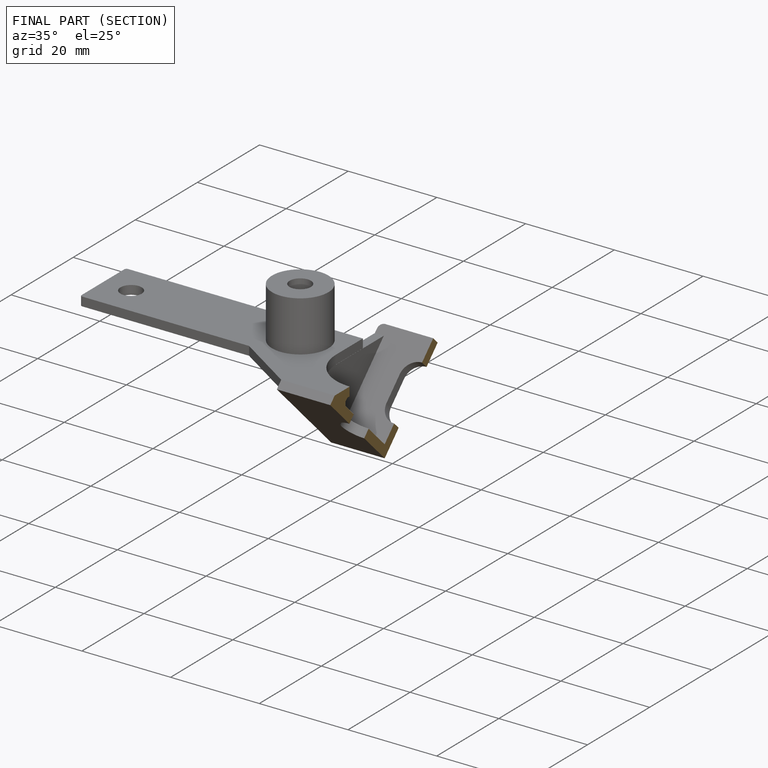
[diagram: finished part — half-section view (interior)]
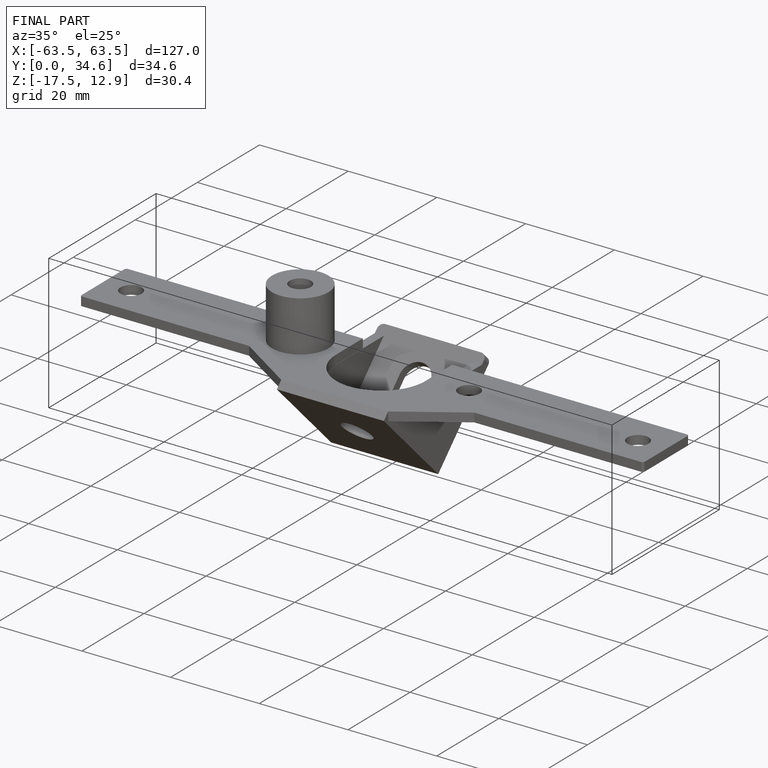
[diagram: finished part — iso view with bounding-box wireframe]
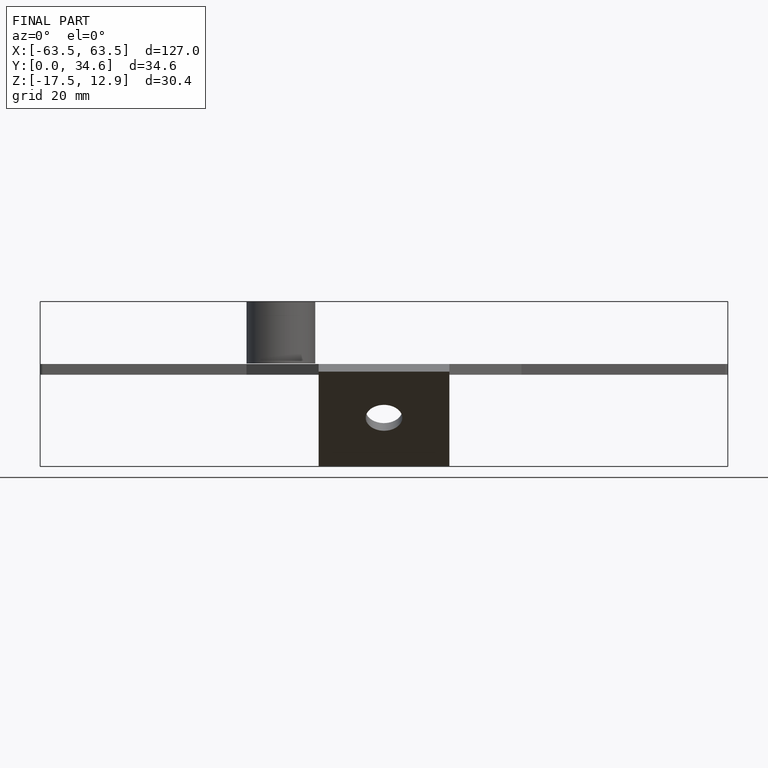
[diagram: finished part — front view with bounding-box wireframe]
